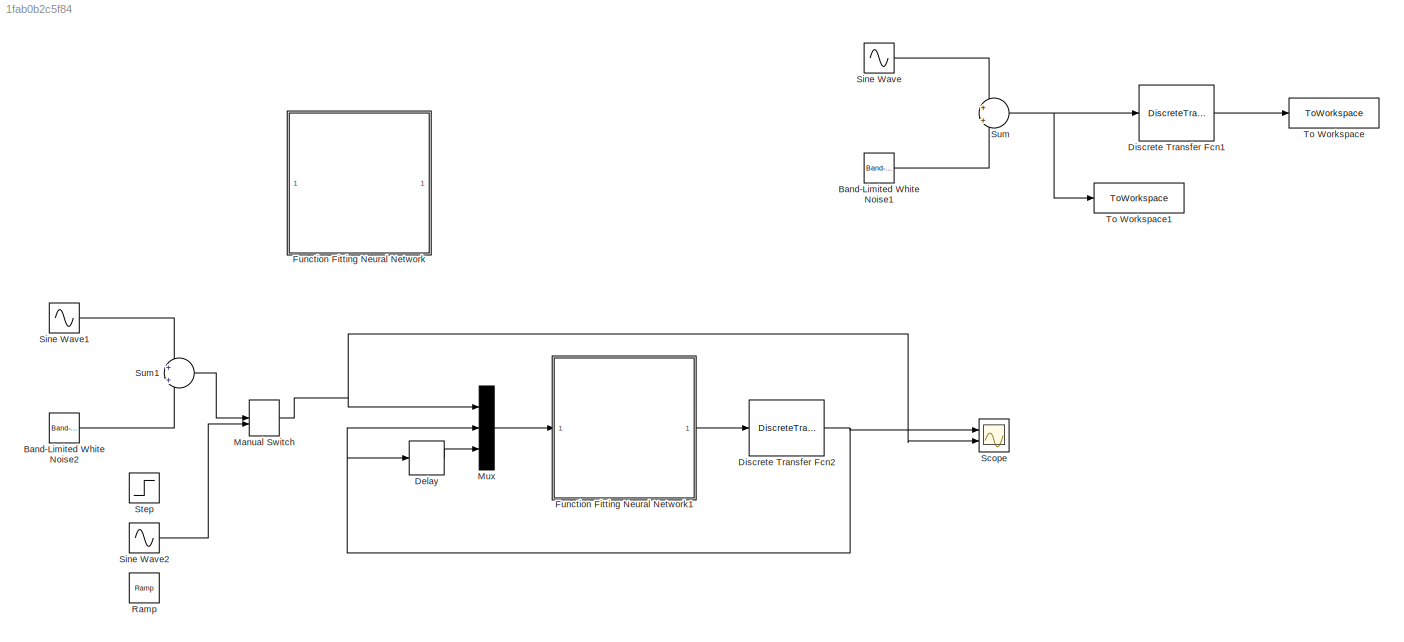
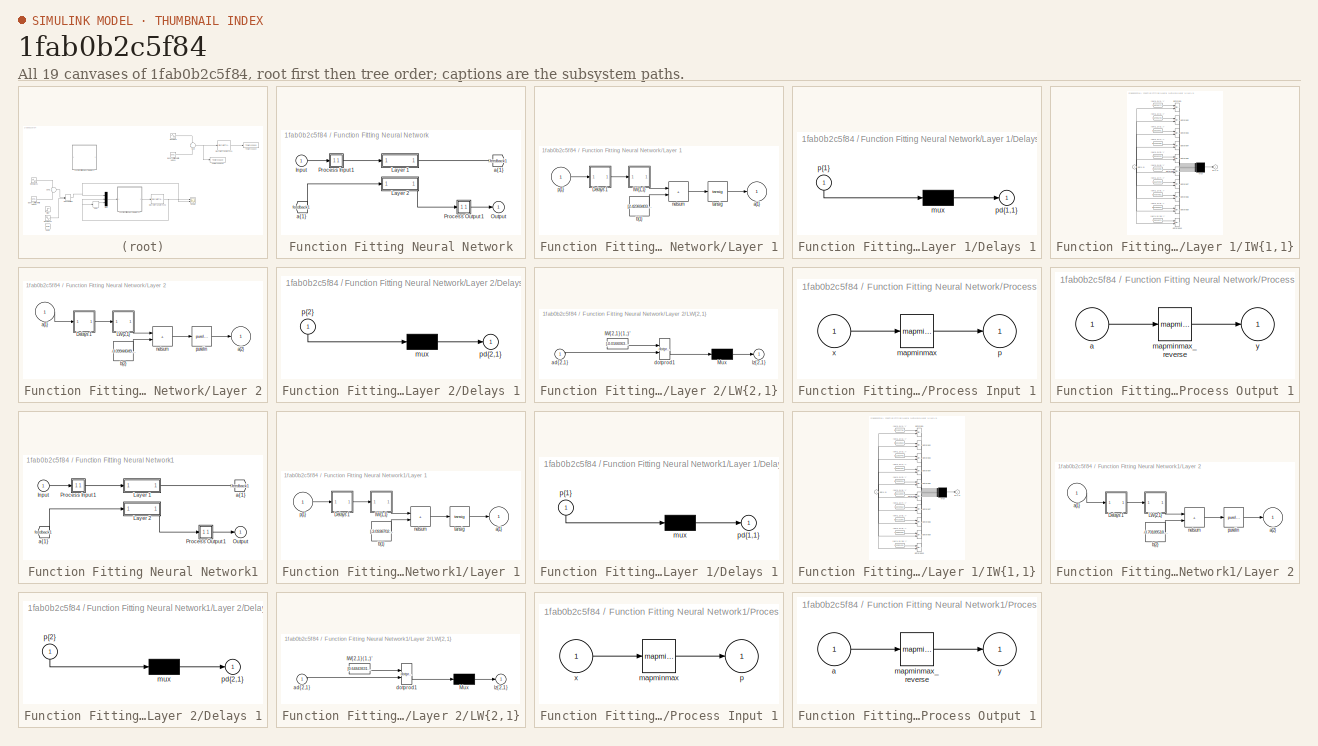
[diagram: thumbnail index - all 19 canvases of the model, root first then tree order]
MODEL slx_1fab0b2c5f84
KIND model
CONFIG AbsTol = auto
CONFIG EnableMultiTasking = off
CONFIG FixedStep = auto
CONFIG MaxStep = auto
CONFIG MinStep = auto
CONFIG RelTol = 1e-3
CONFIG SampleTimeConstraint = Unconstrained
CONFIG SolverName = VariableStepAuto
CONFIG StartTime = 0.0
CONFIG StopTime = 20
BLOCK [Reference] Band-Limited White Noise1  REF=simulink/Sources/Band-Limited
White Noise
  Ports = [0, 1]
  SourceBlock = simulink/Sources/Band-Limited\nWhite Noise
  SourceProductBaseCode = SL
  SourceType = Band-Limited White Noise.
BLOCK [Reference] Band-Limited White Noise2  REF=simulink/Sources/Band-Limited
White Noise
  Ports = [0, 1]
  SourceBlock = simulink/Sources/Band-Limited\nWhite Noise
  SourceProductBaseCode = SL
  SourceType = Band-Limited White Noise.
BLOCK [Delay] Delay
  DelayLength = 1
  InputPortMap = u0
  Ports = [1, 1]
BLOCK [DiscreteTransferFcn] Discrete Transfer Fcn1
  Denominator = [1 -2]
  InputPortMap = u0
  Numerator = [1 0]
  Ports = [1, 1]
BLOCK [DiscreteTransferFcn] Discrete Transfer Fcn2
  Denominator = [1 -2]
  InputPortMap = u0
  Numerator = [1 0]
  Ports = [1, 1]
BLOCK [SubSystem] Function Fitting Neural Network
  Commented = on
  Ports = [1, 1]
  RequestExecContextInheritance = off
BLOCK [From] Function Fitting Neural Network/ a{1} 
  GotoTag = feedback1
BLOCK [Inport] Function Fitting Neural Network/Input
  PortDimensions = 3
BLOCK [SubSystem] Function Fitting Neural Network/Layer 1
  Ports = [1, 1]
  RequestExecContextInheritance = off
BLOCK [SubSystem] Function Fitting Neural Network/Layer 1/Delays 1
  Ports = [1, 1]
  RequestExecContextInheritance = off
BLOCK [Mux] Function Fitting Neural Network/Layer 1/Delays 1/mux
  Inputs = 1
  Ports = [1, 1]
BLOCK [Outport] Function Fitting Neural Network/Layer 1/Delays 1/pd{1,1}
BLOCK [Inport] Function Fitting Neural Network/Layer 1/Delays 1/p{1}
  NameLocation = left
  PortDimensions = 3
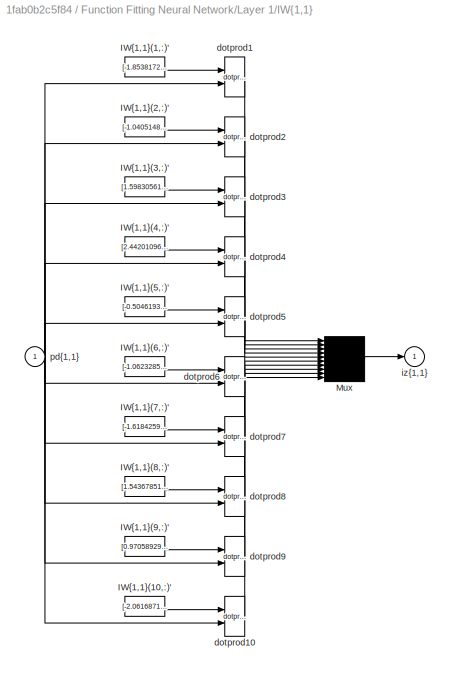
BLOCK [SubSystem] Function Fitting Neural Network/Layer 1/IW{1,1}
  Ports = [1, 1]
  RequestExecContextInheritance = off
BLOCK [Constant] Function Fitting Neural Network/Layer 1/IW{1,1}/IW{1,1}(1,:)'
  Value = [-1.8538172975511404416693039820529520511627197265625;-0.332066299917822604914618978000362403690814971923828125;2.42568332107986694978762898244895040988922119140625]
BLOCK [Constant] Function Fitting Neural Network/Layer 1/IW{1,1}/IW{1,1}(10,:)'
  Value = [-2.061687117255093681933431071229279041290283203125;1.1336639683060789618451735805138014256954193115234375;1.9785565186079765442883626747061498463153839111328125]
BLOCK [Constant] Function Fitting Neural Network/Layer 1/IW{1,1}/IW{1,1}(2,:)'
  Value = [-1.0405148435249180760564513548160903155803680419921875;-1.5574560691753303043327605337253771722316741943359375;2.099701296637487057950011148932389914989471435546875]
BLOCK [Constant] Function Fitting Neural Network/Layer 1/IW{1,1}/IW{1,1}(3,:)'
  Value = [1.5983056149915391142002363267238251864910125732421875;2.07980223276682973931883680052123963832855224609375;1.538073430218994896989670451148413121700286865234375]
BLOCK [Constant] Function Fitting Neural Network/Layer 1/IW{1,1}/IW{1,1}(4,:)'
  Value = [2.442010966173782104959855132619850337505340576171875;-0.915754697132622030864013140671886503696441650390625;-2.0621918556296190416787794674746692180633544921875]
BLOCK [Constant] Function Fitting Neural Network/Layer 1/IW{1,1}/IW{1,1}(5,:)'
  Value = [-0.5046193509156478018695679566008038818836212158203125;-1.5818349413628489674721322444383986294269561767578125;1.568121536642391955496123046032153069972991943359375]
BLOCK [Constant] Function Fitting Neural Network/Layer 1/IW{1,1}/IW{1,1}(6,:)'
  Value = [-1.0623285177454067085278666127123869955539703369140625;-3.24611010847114744848340706084854900836944580078125;-0.63023334981772760610141403958550654351711273193359375]
BLOCK [Constant] Function Fitting Neural Network/Layer 1/IW{1,1}/IW{1,1}(7,:)'
  Value = [-1.6184259020280806762315251035033725202083587646484375;0.71994636478043905203350050214794464409351348876953125;-2.6278073341948395835743212956003844738006591796875]
BLOCK [Constant] Function Fitting Neural Network/Layer 1/IW{1,1}/IW{1,1}(8,:)'
  Value = [1.5436785185587320601285910015576519072055816650390625;-0.328787858825715539889955607577576301991939544677734375;-2.555391928194787443118229930405505001544952392578125]
BLOCK [Constant] Function Fitting Neural Network/Layer 1/IW{1,1}/IW{1,1}(9,:)'
  Value = [0.97058929658693993136608924032771028578281402587890625;-1.3291621353382627734873722147312946617603302001953125;-2.484726903306847756169872809550724923610687255859375]
BLOCK [Mux] Function Fitting Neural Network/Layer 1/IW{1,1}/Mux
  Inputs = 10
  Ports = [10, 1]
BLOCK [Reference] Function Fitting Neural Network/Layer 1/IW{1,1}/dotprod1  REF=neural/Weight Functions/dotprod
  Ports = [2, 1]
  SourceBlock = neural/Weight Functions/dotprod
  SourceProductBaseCode = NN
  SourceType = DOTPROD
BLOCK [Reference] Function Fitting Neural Network/Layer 1/IW{1,1}/dotprod10  REF=neural/Weight Functions/dotprod
  Ports = [2, 1]
  SourceBlock = neural/Weight Functions/dotprod
  SourceProductBaseCode = NN
  SourceType = DOTPROD
BLOCK [Reference] Function Fitting Neural Network/Layer 1/IW{1,1}/dotprod2  REF=neural/Weight Functions/dotprod
  Ports = [2, 1]
  SourceBlock = neural/Weight Functions/dotprod
  SourceProductBaseCode = NN
  SourceType = DOTPROD
BLOCK [Reference] Function Fitting Neural Network/Layer 1/IW{1,1}/dotprod3  REF=neural/Weight Functions/dotprod
  Ports = [2, 1]
  SourceBlock = neural/Weight Functions/dotprod
  SourceProductBaseCode = NN
  SourceType = DOTPROD
BLOCK [Reference] Function Fitting Neural Network/Layer 1/IW{1,1}/dotprod4  REF=neural/Weight Functions/dotprod
  Ports = [2, 1]
  SourceBlock = neural/Weight Functions/dotprod
  SourceProductBaseCode = NN
  SourceType = DOTPROD
BLOCK [Reference] Function Fitting Neural Network/Layer 1/IW{1,1}/dotprod5  REF=neural/Weight Functions/dotprod
  Ports = [2, 1]
  SourceBlock = neural/Weight Functions/dotprod
  SourceProductBaseCode = NN
  SourceType = DOTPROD
BLOCK [Reference] Function Fitting Neural Network/Layer 1/IW{1,1}/dotprod6  REF=neural/Weight Functions/dotprod
  Ports = [2, 1]
  SourceBlock = neural/Weight Functions/dotprod
  SourceProductBaseCode = NN
  SourceType = DOTPROD
BLOCK [Reference] Function Fitting Neural Network/Layer 1/IW{1,1}/dotprod7  REF=neural/Weight Functions/dotprod
  Ports = [2, 1]
  SourceBlock = neural/Weight Functions/dotprod
  SourceProductBaseCode = NN
  SourceType = DOTPROD
BLOCK [Reference] Function Fitting Neural Network/Layer 1/IW{1,1}/dotprod8  REF=neural/Weight Functions/dotprod
  Ports = [2, 1]
  SourceBlock = neural/Weight Functions/dotprod
  SourceProductBaseCode = NN
  SourceType = DOTPROD
BLOCK [Reference] Function Fitting Neural Network/Layer 1/IW{1,1}/dotprod9  REF=neural/Weight Functions/dotprod
  Ports = [2, 1]
  SourceBlock = neural/Weight Functions/dotprod
  SourceProductBaseCode = NN
  SourceType = DOTPROD
BLOCK [Outport] Function Fitting Neural Network/Layer 1/IW{1,1}/iz{1,1}
BLOCK [Inport] Function Fitting Neural Network/Layer 1/IW{1,1}/pd{1,1}
  PortDimensions = 3
BLOCK [Outport] Function Fitting Neural Network/Layer 1/a{1}
  InitialOutput = [0;0;0;0;0;0;0;0;0;0]
BLOCK [Constant] Function Fitting Neural Network/Layer 1/b{1}
  Value = [2.423694036765315473758164444006979465484619140625;2.271003236715445350313302697031758725643157958984375;-1.658442790046226189559774866211228072643280029296875;-0.080439784772176003979637926022405736148357391357421875;-0.324599856742281922539206107103382237255573272705078125;0.2577690445672684571576382950297556817531585693359375;-0.8153172893782560937125936106895096600055694580078125;1.6215715794...<+150ch>
BLOCK [Sum] Function Fitting Neural Network/Layer 1/netsum
  IconShape = rectangular
  InputSameDT = on
  Inputs = 2
  OutDataTypeStr = Inherit: Same as first input
  Ports = [2, 1]
  SaturateOnIntegerOverflow = on
BLOCK [Inport] Function Fitting Neural Network/Layer 1/p{1}
  PortDimensions = 3
BLOCK [Reference] Function Fitting Neural Network/Layer 1/tansig  REF=neural/Transfer Functions/tansig
  Ports = [1, 1]
  SourceBlock = neural/Transfer Functions/tansig
  SourceProductBaseCode = NN
  SourceType = TANSIG
BLOCK [SubSystem] Function Fitting Neural Network/Layer 2
  Ports = [1, 1]
  RequestExecContextInheritance = off
BLOCK [SubSystem] Function Fitting Neural Network/Layer 2/Delays 1
  Ports = [1, 1]
  RequestExecContextInheritance = off
BLOCK [Mux] Function Fitting Neural Network/Layer 2/Delays 1/mux
  Inputs = 1
  Ports = [1, 1]
BLOCK [Outport] Function Fitting Neural Network/Layer 2/Delays 1/pd{2,1}
BLOCK [Inport] Function Fitting Neural Network/Layer 2/Delays 1/p{2}
  NameLocation = left
  PortDimensions = 10
BLOCK [SubSystem] Function Fitting Neural Network/Layer 2/LW{2,1}
  Ports = [1, 1]
  RequestExecContextInheritance = off
BLOCK [Constant] Function Fitting Neural Network/Layer 2/LW{2,1}/IW{2,1}(1,:)'
  Value = [-0.01660635417131169078164276697862078435719013214111328125;-0.61244544010088330932006783768883906304836273193359375;-0.44442654401193582014428784532356075942516326904296875;0.0404545351774867889549369692758773453533649444580078125;-1.880436261849707246796015169820748269557952880859375;0.52125414680983384041468298164545558393001556396484375;-0.05799209646938638385016417942097177729010581970214843...<+169ch>
BLOCK [Mux] Function Fitting Neural Network/Layer 2/LW{2,1}/Mux
  Inputs = 1
  Ports = [1, 1]
BLOCK [Inport] Function Fitting Neural Network/Layer 2/LW{2,1}/ad{2,1}
  PortDimensions = 10
BLOCK [Reference] Function Fitting Neural Network/Layer 2/LW{2,1}/dotprod1  REF=neural/Weight Functions/dotprod
  Ports = [2, 1]
  SourceBlock = neural/Weight Functions/dotprod
  SourceProductBaseCode = NN
  SourceType = DOTPROD
BLOCK [Outport] Function Fitting Neural Network/Layer 2/LW{2,1}/lz{2,1}
BLOCK [Inport] Function Fitting Neural Network/Layer 2/a{1} 
  PortDimensions = 10
BLOCK [Outport] Function Fitting Neural Network/Layer 2/a{2}
  InitialOutput = 0
BLOCK [Constant] Function Fitting Neural Network/Layer 2/b{2}
  Value = -0.0994404991028365881078343591070733964443206787109375
BLOCK [Sum] Function Fitting Neural Network/Layer 2/netsum
  IconShape = rectangular
  InputSameDT = on
  Inputs = 2
  OutDataTypeStr = Inherit: Same as first input
  Ports = [2, 1]
  SaturateOnIntegerOverflow = on
BLOCK [Reference] Function Fitting Neural Network/Layer 2/purelin  REF=neural/Transfer Functions/purelin
  Ports = [1, 1]
  SourceBlock = neural/Transfer Functions/purelin
  SourceProductBaseCode = NN
  SourceType = PURELIN
BLOCK [Outport] Function Fitting Neural Network/Output
  InitialOutput = 0
BLOCK [SubSystem] Function Fitting Neural Network/Process Input 1
  Ports = [1, 1]
  RequestExecContextInheritance = off
BLOCK [Reference] Function Fitting Neural Network/Process Input 1/mapminmax  REF=neural/Processing Functions/mapminmax
  Ports = [1, 1]
  SourceBlock = neural/Processing Functions/mapminmax
  SourceProductBaseCode = NN
  SourceType = MAPMINMAX Preprocess
BLOCK [Outport] Function Fitting Neural Network/Process Input 1/p
  PortDimensions = 3
BLOCK [Inport] Function Fitting Neural Network/Process Input 1/x
  PortDimensions = 3
BLOCK [SubSystem] Function Fitting Neural Network/Process Output 1
  Ports = [1, 1]
  RequestExecContextInheritance = off
BLOCK [Inport] Function Fitting Neural Network/Process Output 1/a
  PortDimensions = 1
BLOCK [Reference] Function Fitting Neural Network/Process Output 1/mapminmax_reverse  REF=neural/Processing Functions/mapminmax_reverse
  Ports = [1, 1]
  SourceBlock = neural/Processing Functions/mapminmax_reverse
  SourceProductBaseCode = NN
  SourceType = MAPMINMAX Reverse Process
BLOCK [Outport] Function Fitting Neural Network/Process Output 1/y
  PortDimensions = 1
BLOCK [Goto] Function Fitting Neural Network/a{1}
  GotoTag = feedback1
BLOCK [SubSystem] Function Fitting Neural Network1
  Ports = [1, 1]
  RequestExecContextInheritance = off
BLOCK [From] Function Fitting Neural Network1/ a{1} 
  GotoTag = feedback1
BLOCK [Inport] Function Fitting Neural Network1/Input
  PortDimensions = 3
BLOCK [SubSystem] Function Fitting Neural Network1/Layer 1
  Ports = [1, 1]
  RequestExecContextInheritance = off
BLOCK [SubSystem] Function Fitting Neural Network1/Layer 1/Delays 1
  Ports = [1, 1]
  RequestExecContextInheritance = off
BLOCK [Mux] Function Fitting Neural Network1/Layer 1/Delays 1/mux
  Inputs = 1
  Ports = [1, 1]
BLOCK [Outport] Function Fitting Neural Network1/Layer 1/Delays 1/pd{1,1}
BLOCK [Inport] Function Fitting Neural Network1/Layer 1/Delays 1/p{1}
  NameLocation = left
  PortDimensions = 3
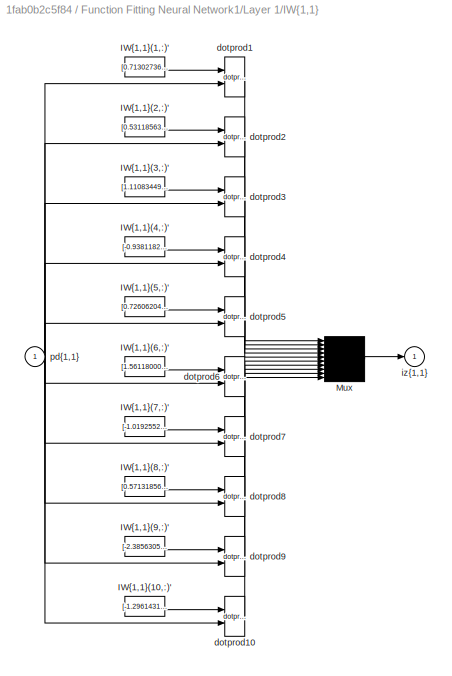
BLOCK [SubSystem] Function Fitting Neural Network1/Layer 1/IW{1,1}
  Ports = [1, 1]
  RequestExecContextInheritance = off
BLOCK [Constant] Function Fitting Neural Network1/Layer 1/IW{1,1}/IW{1,1}(1,:)'
  Value = [0.713027360585019476246770864236168563365936279296875;0.65316364009200345019934275114792399108409881591796875;-2.509358979949389389929592653061263263225555419921875]
BLOCK [Constant] Function Fitting Neural Network1/Layer 1/IW{1,1}/IW{1,1}(10,:)'
  Value = [-1.296143135188426054327237579855136573314666748046875;1.68952949312144706794924786663614213466644287109375;-1.474249389165080525998519078711979091167449951171875]
BLOCK [Constant] Function Fitting Neural Network1/Layer 1/IW{1,1}/IW{1,1}(2,:)'
  Value = [0.5311856360325963866131360191502608358860015869140625;2.95736548581225466847399729886092245578765869140625;0.3047911247144128310537780635058879852294921875]
BLOCK [Constant] Function Fitting Neural Network1/Layer 1/IW{1,1}/IW{1,1}(3,:)'
  Value = [1.110834498325110164529405665234662592411041259765625;2.41283523110917297316291296738199889659881591796875;-0.95261695651438904608454549816087819635868072509765625]
BLOCK [Constant] Function Fitting Neural Network1/Layer 1/IW{1,1}/IW{1,1}(4,:)'
  Value = [-0.93811828730577218049546672773431055247783660888671875;-2.8633191909616950709960292442701756954193115234375;0.375826893951600904397736258033546619117259979248046875]
BLOCK [Constant] Function Fitting Neural Network1/Layer 1/IW{1,1}/IW{1,1}(5,:)'
  Value = [0.7260620409175009282165547119802795350551605224609375;0.80718373216037431205904795206151902675628662109375;-1.7807285371402914453398125260719098150730133056640625]
BLOCK [Constant] Function Fitting Neural Network1/Layer 1/IW{1,1}/IW{1,1}(6,:)'
  Value = [1.561180003597490983935358599410392343997955322265625;-0.64447242639242030559643126252922229468822479248046875;1.2222086662739461981885824570781551301479339599609375]
BLOCK [Constant] Function Fitting Neural Network1/Layer 1/IW{1,1}/IW{1,1}(7,:)'
  Value = [-1.01925522243227550944766335305757820606231689453125;-2.55960992386799102149552709306590259075164794921875;1.244926980158397089581967520643956959247589111328125]
BLOCK [Constant] Function Fitting Neural Network1/Layer 1/IW{1,1}/IW{1,1}(8,:)'
  Value = [0.5713185653274102104859366590972058475017547607421875;-1.5716354479558367618352576755569316446781158447265625;2.50005847799553038157682749442756175994873046875]
BLOCK [Constant] Function Fitting Neural Network1/Layer 1/IW{1,1}/IW{1,1}(9,:)'
  Value = [-2.38563055387927391848279512487351894378662109375;-1.6310845281062729128507271525450050830841064453125;-0.033707272064309311276897318521150737069547176361083984375]
BLOCK [Mux] Function Fitting Neural Network1/Layer 1/IW{1,1}/Mux
  Inputs = 10
  Ports = [10, 1]
BLOCK [Reference] Function Fitting Neural Network1/Layer 1/IW{1,1}/dotprod1  REF=neural/Weight Functions/dotprod
  Ports = [2, 1]
  SourceBlock = neural/Weight Functions/dotprod
  SourceProductBaseCode = NN
  SourceType = DOTPROD
BLOCK [Reference] Function Fitting Neural Network1/Layer 1/IW{1,1}/dotprod10  REF=neural/Weight Functions/dotprod
  Ports = [2, 1]
  SourceBlock = neural/Weight Functions/dotprod
  SourceProductBaseCode = NN
  SourceType = DOTPROD
BLOCK [Reference] Function Fitting Neural Network1/Layer 1/IW{1,1}/dotprod2  REF=neural/Weight Functions/dotprod
  Ports = [2, 1]
  SourceBlock = neural/Weight Functions/dotprod
  SourceProductBaseCode = NN
  SourceType = DOTPROD
BLOCK [Reference] Function Fitting Neural Network1/Layer 1/IW{1,1}/dotprod3  REF=neural/Weight Functions/dotprod
  Ports = [2, 1]
  SourceBlock = neural/Weight Functions/dotprod
  SourceProductBaseCode = NN
  SourceType = DOTPROD
BLOCK [Reference] Function Fitting Neural Network1/Layer 1/IW{1,1}/dotprod4  REF=neural/Weight Functions/dotprod
  Ports = [2, 1]
  SourceBlock = neural/Weight Functions/dotprod
  SourceProductBaseCode = NN
  SourceType = DOTPROD
BLOCK [Reference] Function Fitting Neural Network1/Layer 1/IW{1,1}/dotprod5  REF=neural/Weight Functions/dotprod
  Ports = [2, 1]
  SourceBlock = neural/Weight Functions/dotprod
  SourceProductBaseCode = NN
  SourceType = DOTPROD
BLOCK [Reference] Function Fitting Neural Network1/Layer 1/IW{1,1}/dotprod6  REF=neural/Weight Functions/dotprod
  Ports = [2, 1]
  SourceBlock = neural/Weight Functions/dotprod
  SourceProductBaseCode = NN
  SourceType = DOTPROD
BLOCK [Reference] Function Fitting Neural Network1/Layer 1/IW{1,1}/dotprod7  REF=neural/Weight Functions/dotprod
  Ports = [2, 1]
  SourceBlock = neural/Weight Functions/dotprod
  SourceProductBaseCode = NN
  SourceType = DOTPROD
BLOCK [Reference] Function Fitting Neural Network1/Layer 1/IW{1,1}/dotprod8  REF=neural/Weight Functions/dotprod
  Ports = [2, 1]
  SourceBlock = neural/Weight Functions/dotprod
  SourceProductBaseCode = NN
  SourceType = DOTPROD
BLOCK [Reference] Function Fitting Neural Network1/Layer 1/IW{1,1}/dotprod9  REF=neural/Weight Functions/dotprod
  Ports = [2, 1]
  SourceBlock = neural/Weight Functions/dotprod
  SourceProductBaseCode = NN
  SourceType = DOTPROD
BLOCK [Outport] Function Fitting Neural Network1/Layer 1/IW{1,1}/iz{1,1}
BLOCK [Inport] Function Fitting Neural Network1/Layer 1/IW{1,1}/pd{1,1}
  PortDimensions = 3
BLOCK [Outport] Function Fitting Neural Network1/Layer 1/a{1}
  InitialOutput = [0;0;0;0;0;0;0;0;0;0]
BLOCK [Constant] Function Fitting Neural Network1/Layer 1/b{1}
  Value = [-3.09387026058605574263538073864765465259552001953125;-2.3545903705439794606490977457724511623382568359375;-2.146429599341705962700643794960342347621917724609375;1.2260603755276371362725740254973061382770538330078125;-0.279915959349823939561474617221392691135406494140625;0.3149714930779481392164598219096660614013671875;-0.315049652304642047173643959467881359159946441650390625;1.715247368796556592...<+142ch>
BLOCK [Sum] Function Fitting Neural Network1/Layer 1/netsum
  IconShape = rectangular
  InputSameDT = on
  Inputs = 2
  OutDataTypeStr = Inherit: Same as first input
  Ports = [2, 1]
  SaturateOnIntegerOverflow = on
BLOCK [Inport] Function Fitting Neural Network1/Layer 1/p{1}
  PortDimensions = 3
BLOCK [Reference] Function Fitting Neural Network1/Layer 1/tansig  REF=neural/Transfer Functions/tansig
  Ports = [1, 1]
  SourceBlock = neural/Transfer Functions/tansig
  SourceProductBaseCode = NN
  SourceType = TANSIG
BLOCK [SubSystem] Function Fitting Neural Network1/Layer 2
  Ports = [1, 1]
  RequestExecContextInheritance = off
BLOCK [SubSystem] Function Fitting Neural Network1/Layer 2/Delays 1
  Ports = [1, 1]
  RequestExecContextInheritance = off
BLOCK [Mux] Function Fitting Neural Network1/Layer 2/Delays 1/mux
  Inputs = 1
  Ports = [1, 1]
BLOCK [Outport] Function Fitting Neural Network1/Layer 2/Delays 1/pd{2,1}
BLOCK [Inport] Function Fitting Neural Network1/Layer 2/Delays 1/p{2}
  NameLocation = left
  PortDimensions = 10
BLOCK [SubSystem] Function Fitting Neural Network1/Layer 2/LW{2,1}
  Ports = [1, 1]
  RequestExecContextInheritance = off
BLOCK [Constant] Function Fitting Neural Network1/Layer 2/LW{2,1}/IW{2,1}(1,:)'
  Value = [0.6484363124686698398591033765114843845367431640625;0.52956995018994590385119636266608722507953643798828125;-0.361770365517828540458111774569260887801647186279296875;0.796699522054537201398716206313110888004302978515625;0.608985739510313095479432377032935619354248046875;0.09263017454328341393487988852939452044665813446044921875;-0.402862157476475191142384346676408313214778900146484375;0.821310517...<+166ch>
BLOCK [Mux] Function Fitting Neural Network1/Layer 2/LW{2,1}/Mux
  Inputs = 1
  Ports = [1, 1]
BLOCK [Inport] Function Fitting Neural Network1/Layer 2/LW{2,1}/ad{2,1}
  PortDimensions = 10
BLOCK [Reference] Function Fitting Neural Network1/Layer 2/LW{2,1}/dotprod1  REF=neural/Weight Functions/dotprod
  Ports = [2, 1]
  SourceBlock = neural/Weight Functions/dotprod
  SourceProductBaseCode = NN
  SourceType = DOTPROD
BLOCK [Outport] Function Fitting Neural Network1/Layer 2/LW{2,1}/lz{2,1}
BLOCK [Inport] Function Fitting Neural Network1/Layer 2/a{1} 
  PortDimensions = 10
BLOCK [Outport] Function Fitting Neural Network1/Layer 2/a{2}
  InitialOutput = 0
BLOCK [Constant] Function Fitting Neural Network1/Layer 2/b{2}
  Value = -0.70189518183714405541451242243056185543537139892578125
BLOCK [Sum] Function Fitting Neural Network1/Layer 2/netsum
  IconShape = rectangular
  InputSameDT = on
  Inputs = 2
  OutDataTypeStr = Inherit: Same as first input
  Ports = [2, 1]
  SaturateOnIntegerOverflow = on
BLOCK [Reference] Function Fitting Neural Network1/Layer 2/purelin  REF=neural/Transfer Functions/purelin
  Ports = [1, 1]
  SourceBlock = neural/Transfer Functions/purelin
  SourceProductBaseCode = NN
  SourceType = PURELIN
BLOCK [Outport] Function Fitting Neural Network1/Output
  InitialOutput = 0
BLOCK [SubSystem] Function Fitting Neural Network1/Process Input 1
  Ports = [1, 1]
  RequestExecContextInheritance = off
BLOCK [Reference] Function Fitting Neural Network1/Process Input 1/mapminmax  REF=neural/Processing Functions/mapminmax
  Ports = [1, 1]
  SourceBlock = neural/Processing Functions/mapminmax
  SourceProductBaseCode = NN
  SourceType = MAPMINMAX Preprocess
BLOCK [Outport] Function Fitting Neural Network1/Process Input 1/p
  PortDimensions = 3
BLOCK [Inport] Function Fitting Neural Network1/Process Input 1/x
  PortDimensions = 3
BLOCK [SubSystem] Function Fitting Neural Network1/Process Output 1
  Ports = [1, 1]
  RequestExecContextInheritance = off
BLOCK [Inport] Function Fitting Neural Network1/Process Output 1/a
  PortDimensions = 1
BLOCK [Reference] Function Fitting Neural Network1/Process Output 1/mapminmax_reverse  REF=neural/Processing Functions/mapminmax_reverse
  Ports = [1, 1]
  SourceBlock = neural/Processing Functions/mapminmax_reverse
  SourceProductBaseCode = NN
  SourceType = MAPMINMAX Reverse Process
BLOCK [Outport] Function Fitting Neural Network1/Process Output 1/y
  PortDimensions = 1
BLOCK [Goto] Function Fitting Neural Network1/a{1}
  GotoTag = feedback1
BLOCK [ManualSwitch] Manual Switch
  CurrentSetting = 0
BLOCK [Mux] Mux
  DisplayOption = bar
  Inputs = 3
  Ports = [3, 1]
BLOCK [Reference] Ramp  REF=simulink/Sources/Ramp
  Ports = [0, 1]
  SourceBlock = simulink/Sources/Ramp
  SourceProductBaseCode = SL
  SourceType = Ramp
BLOCK [Scope] Scope
  Floating = off
  NumInputPorts = 2
  Ports = [2]
  ScopeSpecificationString = Simulink.scopes.TimeScopeBlockCfg('CurrentConfiguration', extmgr.ConfigurationSet(extmgr.Configuration('Core','General UI',true),extmgr.Configuration('Core','Source UI',true),extmgr.Configuration('Sources','WiredSimulink',true),extmgr.Configuration('Visuals','Time Domain',true,'SerializedDisplays',{struct('MinYLimReal','-1.39595','MaxYLimReal','1.34338','YLabelReal','','MinYLimMag','0.00000','MaxY...<+1490ch>
BLOCK [Sin] Sine Wave
  Frequency = 20
  Ports = [0, 1]
  SampleTime = 0
BLOCK [Sin] Sine Wave1
  Frequency = 20
  Ports = [0, 1]
  SampleTime = 0
BLOCK [Sin] Sine Wave2
  Frequency = 5
  Ports = [0, 1]
  SampleTime = 0
BLOCK [Step] Step
  SampleTime = 0
BLOCK [Sum] Sum
  Inputs = +|+
  Ports = [2, 1]
BLOCK [Sum] Sum1
  Inputs = +|+
  Ports = [2, 1]
BLOCK [ToWorkspace] To Workspace
  FixptAsFi = on
  MaxDataPoints = inf
  Ports = [1]
  SampleTime = -1
  SaveFormat = Timeseries
  VariableName = Yd1
BLOCK [ToWorkspace] To Workspace1
  FixptAsFi = on
  MaxDataPoints = inf
  Ports = [1]
  SampleTime = -1
  SaveFormat = Timeseries
  VariableName = Xd1
LINE Band-Limited White Noise1:1 -> Sum:2
LINE Band-Limited White Noise2:1 -> Sum1:2
LINE Delay:1 -> Mux:3
LINE Discrete Transfer Fcn1:1 -> To Workspace:1
NET Discrete Transfer Fcn2:1 -> Delay:1, Mux:2, Scope:1
LINE Function Fitting Neural Network/ a{1} :1 -> Function Fitting Neural Network/Layer 2:1
LINE Function Fitting Neural Network/Input:1 -> Function Fitting Neural Network/Process Input 1:1
LINE Function Fitting Neural Network/Layer 1/Delays 1/mux:1 -> Function Fitting Neural Network/Layer 1/Delays 1/pd{1,1}:1
LINE Function Fitting Neural Network/Layer 1/Delays 1/p{1}:1 -> Function Fitting Neural Network/Layer 1/Delays 1/mux:1
LINE Function Fitting Neural Network/Layer 1/Delays 1:1 -> Function Fitting Neural Network/Layer 1/IW{1,1}:1
LINE Function Fitting Neural Network/Layer 1/IW{1,1}/IW{1,1}(1,:)':1 -> Function Fitting Neural Network/Layer 1/IW{1,1}/dotprod1:1
LINE Function Fitting Neural Network/Layer 1/IW{1,1}/IW{1,1}(10,:)':1 -> Function Fitting Neural Network/Layer 1/IW{1,1}/dotprod10:1
LINE Function Fitting Neural Network/Layer 1/IW{1,1}/IW{1,1}(2,:)':1 -> Function Fitting Neural Network/Layer 1/IW{1,1}/dotprod2:1
LINE Function Fitting Neural Network/Layer 1/IW{1,1}/IW{1,1}(3,:)':1 -> Function Fitting Neural Network/Layer 1/IW{1,1}/dotprod3:1
LINE Function Fitting Neural Network/Layer 1/IW{1,1}/IW{1,1}(4,:)':1 -> Function Fitting Neural Network/Layer 1/IW{1,1}/dotprod4:1
LINE Function Fitting Neural Network/Layer 1/IW{1,1}/IW{1,1}(5,:)':1 -> Function Fitting Neural Network/Layer 1/IW{1,1}/dotprod5:1
LINE Function Fitting Neural Network/Layer 1/IW{1,1}/IW{1,1}(6,:)':1 -> Function Fitting Neural Network/Layer 1/IW{1,1}/dotprod6:1
LINE Function Fitting Neural Network/Layer 1/IW{1,1}/IW{1,1}(7,:)':1 -> Function Fitting Neural Network/Layer 1/IW{1,1}/dotprod7:1
LINE Function Fitting Neural Network/Layer 1/IW{1,1}/IW{1,1}(8,:)':1 -> Function Fitting Neural Network/Layer 1/IW{1,1}/dotprod8:1
LINE Function Fitting Neural Network/Layer 1/IW{1,1}/IW{1,1}(9,:)':1 -> Function Fitting Neural Network/Layer 1/IW{1,1}/dotprod9:1
LINE Function Fitting Neural Network/Layer 1/IW{1,1}/Mux:1 -> Function Fitting Neural Network/Layer 1/IW{1,1}/iz{1,1}:1
LINE Function Fitting Neural Network/Layer 1/IW{1,1}/dotprod10:1 -> Function Fitting Neural Network/Layer 1/IW{1,1}/Mux:10
LINE Function Fitting Neural Network/Layer 1/IW{1,1}/dotprod1:1 -> Function Fitting Neural Network/Layer 1/IW{1,1}/Mux:1
LINE Function Fitting Neural Network/Layer 1/IW{1,1}/dotprod2:1 -> Function Fitting Neural Network/Layer 1/IW{1,1}/Mux:2
LINE Function Fitting Neural Network/Layer 1/IW{1,1}/dotprod3:1 -> Function Fitting Neural Network/Layer 1/IW{1,1}/Mux:3
LINE Function Fitting Neural Network/Layer 1/IW{1,1}/dotprod4:1 -> Function Fitting Neural Network/Layer 1/IW{1,1}/Mux:4
LINE Function Fitting Neural Network/Layer 1/IW{1,1}/dotprod5:1 -> Function Fitting Neural Network/Layer 1/IW{1,1}/Mux:5
LINE Function Fitting Neural Network/Layer 1/IW{1,1}/dotprod6:1 -> Function Fitting Neural Network/Layer 1/IW{1,1}/Mux:6
LINE Function Fitting Neural Network/Layer 1/IW{1,1}/dotprod7:1 -> Function Fitting Neural Network/Layer 1/IW{1,1}/Mux:7
LINE Function Fitting Neural Network/Layer 1/IW{1,1}/dotprod8:1 -> Function Fitting Neural Network/Layer 1/IW{1,1}/Mux:8
LINE Function Fitting Neural Network/Layer 1/IW{1,1}/dotprod9:1 -> Function Fitting Neural Network/Layer 1/IW{1,1}/Mux:9
NET Function Fitting Neural Network/Layer 1/IW{1,1}/pd{1,1}:1 -> Function Fitting Neural Network/Layer 1/IW{1,1}/dotprod10:2, Function Fitting Neural Network/Layer 1/IW{1,1}/dotprod1:2, Function Fitting Neural Network/Layer 1/IW{1,1}/dotprod2:2, Function Fitting Neural Network/Layer 1/IW{1,1}/dotprod3:2, Function Fitting Neural Network/Layer 1/IW{1,1}/dotprod4:2, Function Fitting Neural Network/Layer 1/IW{1,1}/dotprod5:2, Function Fitting Neural Network/Layer 1/IW{1,1}/dotprod6:2, Function Fitting Neural Network/Layer 1/IW{1,1}/dotprod7:2, Function Fitting Neural Network/Layer 1/IW{1,1}/dotprod8:2, Function Fitting Neural Network/Layer 1/IW{1,1}/dotprod9:2
LINE Function Fitting Neural Network/Layer 1/IW{1,1}:1 -> Function Fitting Neural Network/Layer 1/netsum:1
LINE Function Fitting Neural Network/Layer 1/b{1}:1 -> Function Fitting Neural Network/Layer 1/netsum:2
LINE Function Fitting Neural Network/Layer 1/netsum:1 -> Function Fitting Neural Network/Layer 1/tansig:1
LINE Function Fitting Neural Network/Layer 1/p{1}:1 -> Function Fitting Neural Network/Layer 1/Delays 1:1
LINE Function Fitting Neural Network/Layer 1/tansig:1 -> Function Fitting Neural Network/Layer 1/a{1}:1
LINE Function Fitting Neural Network/Layer 1:1 -> Function Fitting Neural Network/a{1}:1
LINE Function Fitting Neural Network/Layer 2/Delays 1/mux:1 -> Function Fitting Neural Network/Layer 2/Delays 1/pd{2,1}:1
LINE Function Fitting Neural Network/Layer 2/Delays 1/p{2}:1 -> Function Fitting Neural Network/Layer 2/Delays 1/mux:1
LINE Function Fitting Neural Network/Layer 2/Delays 1:1 -> Function Fitting Neural Network/Layer 2/LW{2,1}:1
LINE Function Fitting Neural Network/Layer 2/LW{2,1}/IW{2,1}(1,:)':1 -> Function Fitting Neural Network/Layer 2/LW{2,1}/dotprod1:1
LINE Function Fitting Neural Network/Layer 2/LW{2,1}/Mux:1 -> Function Fitting Neural Network/Layer 2/LW{2,1}/lz{2,1}:1
LINE Function Fitting Neural Network/Layer 2/LW{2,1}/ad{2,1}:1 -> Function Fitting Neural Network/Layer 2/LW{2,1}/dotprod1:2
LINE Function Fitting Neural Network/Layer 2/LW{2,1}/dotprod1:1 -> Function Fitting Neural Network/Layer 2/LW{2,1}/Mux:1
LINE Function Fitting Neural Network/Layer 2/LW{2,1}:1 -> Function Fitting Neural Network/Layer 2/netsum:1
LINE Function Fitting Neural Network/Layer 2/a{1} :1 -> Function Fitting Neural Network/Layer 2/Delays 1:1
LINE Function Fitting Neural Network/Layer 2/b{2}:1 -> Function Fitting Neural Network/Layer 2/netsum:2
LINE Function Fitting Neural Network/Layer 2/netsum:1 -> Function Fitting Neural Network/Layer 2/purelin:1
LINE Function Fitting Neural Network/Layer 2/purelin:1 -> Function Fitting Neural Network/Layer 2/a{2}:1
LINE Function Fitting Neural Network/Layer 2:1 -> Function Fitting Neural Network/Process Output 1:1
LINE Function Fitting Neural Network/Process Input 1/mapminmax:1 -> Function Fitting Neural Network/Process Input 1/p:1
LINE Function Fitting Neural Network/Process Input 1/x:1 -> Function Fitting Neural Network/Process Input 1/mapminmax:1
LINE Function Fitting Neural Network/Process Input 1:1 -> Function Fitting Neural Network/Layer 1:1
LINE Function Fitting Neural Network/Process Output 1/a:1 -> Function Fitting Neural Network/Process Output 1/mapminmax_reverse:1
LINE Function Fitting Neural Network/Process Output 1/mapminmax_reverse:1 -> Function Fitting Neural Network/Process Output 1/y:1
LINE Function Fitting Neural Network/Process Output 1:1 -> Function Fitting Neural Network/Output:1
LINE Function Fitting Neural Network1/ a{1} :1 -> Function Fitting Neural Network1/Layer 2:1
LINE Function Fitting Neural Network1/Input:1 -> Function Fitting Neural Network1/Process Input 1:1
LINE Function Fitting Neural Network1/Layer 1/Delays 1/mux:1 -> Function Fitting Neural Network1/Layer 1/Delays 1/pd{1,1}:1
LINE Function Fitting Neural Network1/Layer 1/Delays 1/p{1}:1 -> Function Fitting Neural Network1/Layer 1/Delays 1/mux:1
LINE Function Fitting Neural Network1/Layer 1/Delays 1:1 -> Function Fitting Neural Network1/Layer 1/IW{1,1}:1
LINE Function Fitting Neural Network1/Layer 1/IW{1,1}/IW{1,1}(1,:)':1 -> Function Fitting Neural Network1/Layer 1/IW{1,1}/dotprod1:1
LINE Function Fitting Neural Network1/Layer 1/IW{1,1}/IW{1,1}(10,:)':1 -> Function Fitting Neural Network1/Layer 1/IW{1,1}/dotprod10:1
LINE Function Fitting Neural Network1/Layer 1/IW{1,1}/IW{1,1}(2,:)':1 -> Function Fitting Neural Network1/Layer 1/IW{1,1}/dotprod2:1
LINE Function Fitting Neural Network1/Layer 1/IW{1,1}/IW{1,1}(3,:)':1 -> Function Fitting Neural Network1/Layer 1/IW{1,1}/dotprod3:1
LINE Function Fitting Neural Network1/Layer 1/IW{1,1}/IW{1,1}(4,:)':1 -> Function Fitting Neural Network1/Layer 1/IW{1,1}/dotprod4:1
LINE Function Fitting Neural Network1/Layer 1/IW{1,1}/IW{1,1}(5,:)':1 -> Function Fitting Neural Network1/Layer 1/IW{1,1}/dotprod5:1
LINE Function Fitting Neural Network1/Layer 1/IW{1,1}/IW{1,1}(6,:)':1 -> Function Fitting Neural Network1/Layer 1/IW{1,1}/dotprod6:1
LINE Function Fitting Neural Network1/Layer 1/IW{1,1}/IW{1,1}(7,:)':1 -> Function Fitting Neural Network1/Layer 1/IW{1,1}/dotprod7:1
LINE Function Fitting Neural Network1/Layer 1/IW{1,1}/IW{1,1}(8,:)':1 -> Function Fitting Neural Network1/Layer 1/IW{1,1}/dotprod8:1
LINE Function Fitting Neural Network1/Layer 1/IW{1,1}/IW{1,1}(9,:)':1 -> Function Fitting Neural Network1/Layer 1/IW{1,1}/dotprod9:1
LINE Function Fitting Neural Network1/Layer 1/IW{1,1}/Mux:1 -> Function Fitting Neural Network1/Layer 1/IW{1,1}/iz{1,1}:1
LINE Function Fitting Neural Network1/Layer 1/IW{1,1}/dotprod10:1 -> Function Fitting Neural Network1/Layer 1/IW{1,1}/Mux:10
LINE Function Fitting Neural Network1/Layer 1/IW{1,1}/dotprod1:1 -> Function Fitting Neural Network1/Layer 1/IW{1,1}/Mux:1
LINE Function Fitting Neural Network1/Layer 1/IW{1,1}/dotprod2:1 -> Function Fitting Neural Network1/Layer 1/IW{1,1}/Mux:2
LINE Function Fitting Neural Network1/Layer 1/IW{1,1}/dotprod3:1 -> Function Fitting Neural Network1/Layer 1/IW{1,1}/Mux:3
LINE Function Fitting Neural Network1/Layer 1/IW{1,1}/dotprod4:1 -> Function Fitting Neural Network1/Layer 1/IW{1,1}/Mux:4
LINE Function Fitting Neural Network1/Layer 1/IW{1,1}/dotprod5:1 -> Function Fitting Neural Network1/Layer 1/IW{1,1}/Mux:5
LINE Function Fitting Neural Network1/Layer 1/IW{1,1}/dotprod6:1 -> Function Fitting Neural Network1/Layer 1/IW{1,1}/Mux:6
LINE Function Fitting Neural Network1/Layer 1/IW{1,1}/dotprod7:1 -> Function Fitting Neural Network1/Layer 1/IW{1,1}/Mux:7
LINE Function Fitting Neural Network1/Layer 1/IW{1,1}/dotprod8:1 -> Function Fitting Neural Network1/Layer 1/IW{1,1}/Mux:8
LINE Function Fitting Neural Network1/Layer 1/IW{1,1}/dotprod9:1 -> Function Fitting Neural Network1/Layer 1/IW{1,1}/Mux:9
NET Function Fitting Neural Network1/Layer 1/IW{1,1}/pd{1,1}:1 -> Function Fitting Neural Network1/Layer 1/IW{1,1}/dotprod10:2, Function Fitting Neural Network1/Layer 1/IW{1,1}/dotprod1:2, Function Fitting Neural Network1/Layer 1/IW{1,1}/dotprod2:2, Function Fitting Neural Network1/Layer 1/IW{1,1}/dotprod3:2, Function Fitting Neural Network1/Layer 1/IW{1,1}/dotprod4:2, Function Fitting Neural Network1/Layer 1/IW{1,1}/dotprod5:2, Function Fitting Neural Network1/Layer 1/IW{1,1}/dotprod6:2, Function Fitting Neural Network1/Layer 1/IW{1,1}/dotprod7:2, Function Fitting Neural Network1/Layer 1/IW{1,1}/dotprod8:2, Function Fitting Neural Network1/Layer 1/IW{1,1}/dotprod9:2
LINE Function Fitting Neural Network1/Layer 1/IW{1,1}:1 -> Function Fitting Neural Network1/Layer 1/netsum:1
LINE Function Fitting Neural Network1/Layer 1/b{1}:1 -> Function Fitting Neural Network1/Layer 1/netsum:2
LINE Function Fitting Neural Network1/Layer 1/netsum:1 -> Function Fitting Neural Network1/Layer 1/tansig:1
LINE Function Fitting Neural Network1/Layer 1/p{1}:1 -> Function Fitting Neural Network1/Layer 1/Delays 1:1
LINE Function Fitting Neural Network1/Layer 1/tansig:1 -> Function Fitting Neural Network1/Layer 1/a{1}:1
LINE Function Fitting Neural Network1/Layer 1:1 -> Function Fitting Neural Network1/a{1}:1
LINE Function Fitting Neural Network1/Layer 2/Delays 1/mux:1 -> Function Fitting Neural Network1/Layer 2/Delays 1/pd{2,1}:1
LINE Function Fitting Neural Network1/Layer 2/Delays 1/p{2}:1 -> Function Fitting Neural Network1/Layer 2/Delays 1/mux:1
LINE Function Fitting Neural Network1/Layer 2/Delays 1:1 -> Function Fitting Neural Network1/Layer 2/LW{2,1}:1
LINE Function Fitting Neural Network1/Layer 2/LW{2,1}/IW{2,1}(1,:)':1 -> Function Fitting Neural Network1/Layer 2/LW{2,1}/dotprod1:1
LINE Function Fitting Neural Network1/Layer 2/LW{2,1}/Mux:1 -> Function Fitting Neural Network1/Layer 2/LW{2,1}/lz{2,1}:1
LINE Function Fitting Neural Network1/Layer 2/LW{2,1}/ad{2,1}:1 -> Function Fitting Neural Network1/Layer 2/LW{2,1}/dotprod1:2
LINE Function Fitting Neural Network1/Layer 2/LW{2,1}/dotprod1:1 -> Function Fitting Neural Network1/Layer 2/LW{2,1}/Mux:1
LINE Function Fitting Neural Network1/Layer 2/LW{2,1}:1 -> Function Fitting Neural Network1/Layer 2/netsum:1
LINE Function Fitting Neural Network1/Layer 2/a{1} :1 -> Function Fitting Neural Network1/Layer 2/Delays 1:1
LINE Function Fitting Neural Network1/Layer 2/b{2}:1 -> Function Fitting Neural Network1/Layer 2/netsum:2
LINE Function Fitting Neural Network1/Layer 2/netsum:1 -> Function Fitting Neural Network1/Layer 2/purelin:1
LINE Function Fitting Neural Network1/Layer 2/purelin:1 -> Function Fitting Neural Network1/Layer 2/a{2}:1
LINE Function Fitting Neural Network1/Layer 2:1 -> Function Fitting Neural Network1/Process Output 1:1
LINE Function Fitting Neural Network1/Process Input 1/mapminmax:1 -> Function Fitting Neural Network1/Process Input 1/p:1
LINE Function Fitting Neural Network1/Process Input 1/x:1 -> Function Fitting Neural Network1/Process Input 1/mapminmax:1
LINE Function Fitting Neural Network1/Process Input 1:1 -> Function Fitting Neural Network1/Layer 1:1
LINE Function Fitting Neural Network1/Process Output 1/a:1 -> Function Fitting Neural Network1/Process Output 1/mapminmax_reverse:1
LINE Function Fitting Neural Network1/Process Output 1/mapminmax_reverse:1 -> Function Fitting Neural Network1/Process Output 1/y:1
LINE Function Fitting Neural Network1/Process Output 1:1 -> Function Fitting Neural Network1/Output:1
LINE Function Fitting Neural Network1:1 -> Discrete Transfer Fcn2:1
NET Manual Switch:1 -> Mux:1, Scope:2
LINE Mux:1 -> Function Fitting Neural Network1:1
LINE Sine Wave1:1 -> Sum1:1
LINE Sine Wave2:1 -> Manual Switch:2
LINE Sine Wave:1 -> Sum:1
LINE Sum1:1 -> Manual Switch:1
NET Sum:1 -> Discrete Transfer Fcn1:1, To Workspace1:1
note: NET lines group one-source signal fan-out (src -> all destinations, sorted); 1:1 wires keep LINE
